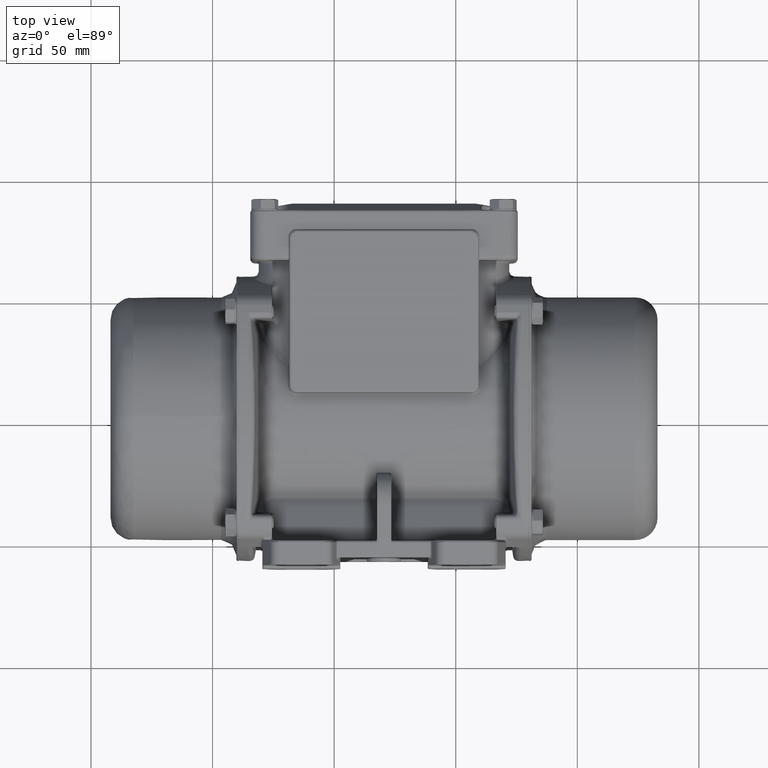
[diagram: clean part render]
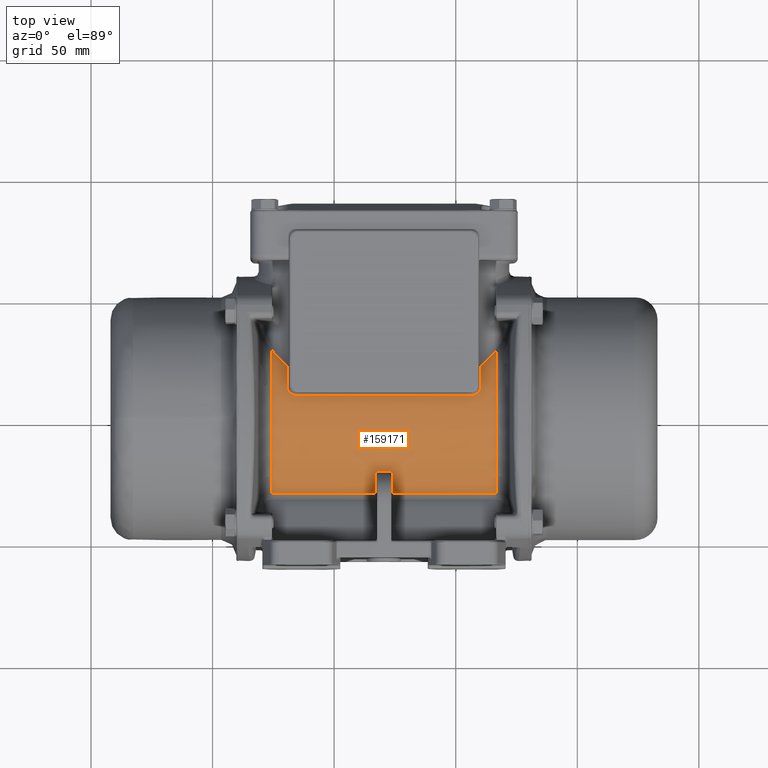
[diagram: same view with one face highlighted and labeled with its STEP entity id]
A machine part, top view. The second image highlights one B-rep face of the part: STEP entity #159171.
In plain terms, the highlighted face is a freeform B-spline surface patch.
Its self-contained STEP definition (entity closure, byte-faithful):
#1053 = CARTESIAN_POINT ( 'NONE',  ( 24.19548528429036300, -77.64548435813507900, 29.70231514955736100 ) ) ;
#4578 = DIRECTION ( 'NONE',  ( -1.000000000000000000, -6.123032000000000300E-017, -4.429664172539200000E-032 ) ) ;
#7208 = EDGE_CURVE ( 'NONE', #94421, #67795, #100573, .T. ) ;
#8401 = VERTEX_POINT ( 'NONE', #57209 ) ;
#9376 = CARTESIAN_POINT ( 'NONE',  ( 73.99998712874167900, -77.87841018997920600, 29.35156392523201400 ) ) ;
#9605 = LINE ( 'NONE', #116565, #62013 ) ;
#10091 = CARTESIAN_POINT ( 'NONE',  ( 73.99998712874189300, -71.72025815721328000, 34.39580548289009700 ) ) ;
#10104 = CARTESIAN_POINT ( 'NONE',  ( 110.3999871048999500, -35.77596681770489800, 39.50120770182883900 ) ) ;
#10758 = CARTESIAN_POINT ( 'NONE',  ( 109.3664133105152400, -38.51169075352239400, 40.28537700229859600 ) ) ;
#11380 = ORIENTED_EDGE ( 'NONE', *, *, #7208, .F. ) ;
#11607 = CARTESIAN_POINT ( 'NONE',  ( 116.8044889728554400, -50.91120879921764000, 41.70311492340899000 ) ) ;
#11846 = B_SPLINE_CURVE_WITH_KNOTS ( 'NONE', 3,
 ( #154663, #123794, #72423, #90702, #88568, #171512, #54805, #70974 ),
 .UNSPECIFIED., .F., .F.,
 ( 4, 1, 1, 1, 1, 4 ),
 ( 0.0000000000000000000, 0.2569106154188358600, 0.5140849566749800000, 0.7714651019669707100, 0.9002139309852004200, 1.000000000000000000 ),
 .UNSPECIFIED. ) ;
#12924 = CARTESIAN_POINT ( 'NONE',  ( 106.7596284051278700, -39.59312788280028900, 40.53307486326352200 ) ) ;
#13065 = DIRECTION ( 'NONE',  ( -1.000000000000000000, -6.123032000000000300E-017, -4.429664172539200000E-032 ) ) ;
#14524 = CARTESIAN_POINT ( 'NONE',  ( 24.19546118824100800, -27.12918541999437100, 35.89276262692222700 ) ) ;
#15254 = CARTESIAN_POINT ( 'NONE',  ( 116.8045130692425600, -42.64926428042931400, 41.36115196693917500 ) ) ;
#15883 = VERTEX_POINT ( 'NONE', #195701 ) ;
#15901 = CARTESIAN_POINT ( 'NONE',  ( 66.99998712874189300, -79.67463676406561000, 27.39329704920243500 ) ) ;
#16459 = CARTESIAN_POINT ( 'NONE',  ( 24.19548528454507200, -20.66016519486407800, 30.77652843473947500 ) ) ;
#17077 = VECTOR ( 'NONE', #4578, 1000.000000000000000 ) ;
#20204 = CARTESIAN_POINT ( 'NONE',  ( 73.21962226357902600, -70.74857223047220600, 35.03216904958227900 ) ) ;
#20908 = CARTESIAN_POINT ( 'NONE',  ( 73.99998712874189300, -71.72025815721328000, 34.39580548289009700 ) ) ;
#20933 = CARTESIAN_POINT ( 'NONE',  ( 110.6429676980205800, -27.17330762418530900, 35.60193546100279600 ) ) ;
#22091 = CARTESIAN_POINT ( 'NONE',  ( 67.99998712874189300, -70.73215535031695800, 35.04257346206930600 ) ) ;
#23912 = EDGE_CURVE ( 'NONE', #37552, #15883, #45906, .T. ) ;
#26233 = CARTESIAN_POINT ( 'NONE',  ( 73.99998712874189300, -75.94061480281433800, 31.17077231307148500 ) ) ;
#26324 = CARTESIAN_POINT ( 'NONE',  ( 116.8044889728554200, -73.85326649757230700, 33.19789293070482500 ) ) ;
#26767 = B_SPLINE_CURVE_WITH_KNOTS ( 'NONE', 3,
 ( #70688, #188131, #187385, #72134, #189531, #153649, #206475 ),
 .UNSPECIFIED., .F., .F.,
 ( 4, 1, 1, 1, 4 ),
 ( 0.0000000000000000000, 0.2623896652244829300, 0.5247793304489620800, 0.7871689956734419000, 1.000000000000000000 ),
 .UNSPECIFIED. ) ;
#28006 = VERTEX_POINT ( 'NONE', #10104 ) ;
#28240 = EDGE_CURVE ( 'NONE', #182849, #199397, #158748, .T. ) ;
#29959 = CARTESIAN_POINT ( 'NONE',  ( 55.06514514857474300, -59.07868740315491600, 40.41123290504966500 ) ) ;
#30706 = CARTESIAN_POINT ( 'NONE',  ( 85.93482910890892900, -50.91120879921761900, 41.70311492340899000 ) ) ;
#31281 = CARTESIAN_POINT ( 'NONE',  ( 110.3999871048999500, -35.77596681770489800, 39.50120770182883900 ) ) ;
#31428 = CARTESIAN_POINT ( 'NONE',  ( 55.06514514857485700, -22.69017992929889300, 32.61290087490898100 ) ) ;
#32081 = CARTESIAN_POINT ( 'NONE',  ( 30.59998715258360800, -35.77596681784306300, 39.50120770187334800 ) ) ;
#32663 = CARTESIAN_POINT ( 'NONE',  ( 24.19548528429024600, -55.57883904628625500, 41.26050045192679500 ) ) ;
#32906 = CARTESIAN_POINT ( 'NONE',  ( 85.93482910890904200, -34.61597184737408400, 39.39776282153696500 ) ) ;
#33093 = EDGE_CURVE ( 'NONE', #145004, #42387, #206257, .T. ) ;
#33576 = CARTESIAN_POINT ( 'NONE',  ( 66.99998712874189300, -75.94061480281433800, 31.17077231307148500 ) ) ;
#35723 = CARTESIAN_POINT ( 'NONE',  ( 112.3250417842215500, -25.58497491652052600, 34.61187046806690400 ) ) ;
#37552 = VERTEX_POINT ( 'NONE', #206917 ) ;
#37592 = CARTESIAN_POINT ( 'NONE',  ( 67.04055236098321300, -71.37456401872306300, 34.62750534968183300 ) ) ;
#38316 = CARTESIAN_POINT ( 'NONE',  ( 67.78035199390315300, -70.74857223047864400, 35.03216904957816500 ) ) ;
#38429 = CARTESIAN_POINT ( 'NONE',  ( 58.49998712874182900, -39.59317165760800300, 40.53292744709676000 ) ) ;
#38674 = CARTESIAN_POINT ( 'NONE',  ( 30.59998715258360800, -35.77596681784306300, 39.50120770187334800 ) ) ;
#39709 = CARTESIAN_POINT ( 'NONE',  ( 66.99845510307895300, -71.60263519817149800, 34.47505995399331600 ) ) ;
#39824 = CARTESIAN_POINT ( 'NONE',  ( 106.4999871287420900, -39.59319413631967400, 40.53282517687565400 ) ) ;
#41236 = B_SPLINE_CURVE_WITH_KNOTS ( 'NONE', 3,
 ( #104496, #38429, #89727, #39824 ),
 .UNSPECIFIED., .F., .F.,
 ( 4, 4 ),
 ( 0.0000000000000000000, 1.000000000000000000 ),
 .UNSPECIFIED. ) ;
#42387 = VERTEX_POINT ( 'NONE', #212418 ) ;
#43203 = CARTESIAN_POINT ( 'NONE',  ( 116.8044889728555400, -34.61597184737408400, 39.39776282153696500 ) ) ;
#45906 = B_SPLINE_CURVE_WITH_KNOTS ( 'NONE', 3,
 ( #200142, #217101, #132647, #148061, #184712, #49674, #32081 ),
 .UNSPECIFIED., .F., .F.,
 ( 4, 1, 1, 1, 4 ),
 ( 0.0000000000000000000, 0.2128296603731096900, 0.4752197735820701800, 0.7376098867910369000, 1.000000000000000000 ),
 .UNSPECIFIED. ) ;
#46824 = CARTESIAN_POINT ( 'NONE',  ( 24.19546118824100800, -20.65943761747074300, 30.77584209325770800 ) ) ;
#47417 = CARTESIAN_POINT ( 'NONE',  ( 107.2806604913124200, -39.54179571491675200, 40.52165048539065100 ) ) ;
#48285 = CARTESIAN_POINT ( 'NONE',  ( 55.06514514857497000, -50.91120879921761900, 41.70311492340899000 ) ) ;
#48466 = VERTEX_POINT ( 'NONE', #156516 ) ;
#49019 = CARTESIAN_POINT ( 'NONE',  ( 55.06514514857485700, -27.12918541999437100, 35.89276262692222700 ) ) ;
#49674 = CARTESIAN_POINT ( 'NONE',  ( 30.59998715258371900, -35.00921183937594300, 39.25426377079680400 ) ) ;
#49745 = CARTESIAN_POINT ( 'NONE',  ( 24.19546118824100800, -22.69017992929889300, 32.61290087490898100 ) ) ;
#50213 = CARTESIAN_POINT ( 'NONE',  ( 24.19548528429069000, -72.99411434475756300, 33.93868637855192800 ) ) ;
#50769 = B_SPLINE_SURFACE_WITH_KNOTS ( 'NONE', 3, 3, ( 
 ( #99675, #184060, #131250, #46824 ),
 ( #130532, #164290, #31428, #49745 ),
 ( #214974, #183355, #49019, #14524 ),
 ( #148886, #32906, #197304, #198770 ),
 ( #15254, #214248, #80600, #98212 ),
 ( #65906, #30706, #48285, #82043 ),
 ( #217171, #198040, #29959, #82772 ),
 ( #181151, #199499, #97457, #98959 ),
 ( #167185, #182626, #147399, #65180 ),
 ( #96747, #200220, #64451, #114375 ),
 ( #216443, #113627, #116561, #115814 ) ),
 .UNSPECIFIED., .F., .F., .F.,
 ( 4, 1, 1, 1, 1, 1, 1, 1, 4 ),
 ( 4, 4 ),
 ( 0.0000000000000000000, 8.215125911306513400, 16.43025182261303400, 24.64537773391948900, 32.86050364522601800, 41.07562955653249800, 49.29075546783904100, 57.50588137914550700, 65.72100729045202200 ),
 ( 0.0000000000000000000, 92.60905188100173300 ),
 .UNSPECIFIED. ) ;
#51110 = ORIENTED_EDGE ( 'NONE', *, *, #117695, .F. ) ;
#51821 = CARTESIAN_POINT ( 'NONE',  ( 116.8044889729389400, -20.66016519481739200, 30.77652843469372700 ) ) ;
#52506 = CARTESIAN_POINT ( 'NONE',  ( 73.95942189651083300, -71.37456401872232400, 34.62750534968267900 ) ) ;
#52530 = CARTESIAN_POINT ( 'NONE',  ( 115.3450081061708200, -22.38526560804645300, 32.27985840678568500 ) ) ;
#53978 = CARTESIAN_POINT ( 'NONE',  ( 73.60040827855363000, -70.92176426556501700, 34.92164727352401600 ) ) ;
#54805 = CARTESIAN_POINT ( 'NONE',  ( 30.35697377825108800, -27.17336986461196000, 35.60195376384137900 ) ) ;
#55151 = VERTEX_POINT ( 'NONE', #71974 ) ;
#57209 = CARTESIAN_POINT ( 'NONE',  ( 73.99998712874189300, -71.72025815721328000, 34.39580548289009700 ) ) ;
#58521 = CARTESIAN_POINT ( 'NONE',  ( 73.99998712874189300, -73.89042693418829800, 32.86231002303898000 ) ) ;
#59824 = CARTESIAN_POINT ( 'NONE',  ( 31.63356094696802900, -38.51169075351940300, 40.28537700229775700 ) ) ;
#60689 = CARTESIAN_POINT ( 'NONE',  ( 73.99998712874189300, -79.09020778459463900, 28.05839978401294500 ) ) ;
#62013 = VECTOR ( 'NONE', #13065, 1000.000000000000000 ) ;
#62843 = CARTESIAN_POINT ( 'NONE',  ( 106.4999871287420900, -39.59319413631967400, 40.53282517687565400 ) ) ;
#64451 = CARTESIAN_POINT ( 'NONE',  ( 55.06514514857485700, -77.89652721224921100, 29.42097129651573100 ) ) ;
#64592 = VERTEX_POINT ( 'NONE', #190998 ) ;
#64677 = ORIENTED_EDGE ( 'NONE', *, *, #28240, .F. ) ;
#65180 = CARTESIAN_POINT ( 'NONE',  ( 24.19546118824122900, -73.86510900130532800, 33.19057738564677600 ) ) ;
#65668 = CARTESIAN_POINT ( 'NONE',  ( 24.19548528429058000, -36.63449012295137700, 40.14658275216523700 ) ) ;
#65906 = CARTESIAN_POINT ( 'NONE',  ( 116.8045130692427700, -50.91120879921761900, 41.70311492340899000 ) ) ;
#66046 = EDGE_CURVE ( 'NONE', #137730, #134114, #41236, .T. ) ;
#66521 = B_SPLINE_CURVE_WITH_KNOTS ( 'NONE', 3,
 ( #20908, #186122, #52506, #169945, #53978, #170660, #20204, #155250, #136217 ),
 .UNSPECIFIED., .F., .F.,
 ( 4, 1, 1, 1, 1, 1, 4 ),
 ( 0.0000000000000000000, 0.2754641723109533800, 0.5376631528788543600, 0.6616143933934421900, 0.7794369540210756000, 0.8914748273275403500, 1.000000000000000000 ),
 .UNSPECIFIED. ) ;
#67795 = VERTEX_POINT ( 'NONE', #183955 ) ;
#70688 = CARTESIAN_POINT ( 'NONE',  ( 110.3999871048999500, -35.77596681770489800, 39.50120770182883900 ) ) ;
#70974 = CARTESIAN_POINT ( 'NONE',  ( 30.60004465089016900, -27.39212459950846000, 35.73108979909662300 ) ) ;
#71709 = CARTESIAN_POINT ( 'NONE',  ( 30.64723060709407700, -36.50298843934479700, 39.73051343112675200 ) ) ;
#71974 = CARTESIAN_POINT ( 'NONE',  ( 72.99998712874189300, -70.73215535032417700, 35.04257346206471600 ) ) ;
#72134 = CARTESIAN_POINT ( 'NONE',  ( 110.3999871049000600, -31.26172354703865600, 37.77617629520715100 ) ) ;
#72423 = CARTESIAN_POINT ( 'NONE',  ( 25.65467561364634700, -22.38540828089655900, 32.27990020896774600 ) ) ;
#80600 = CARTESIAN_POINT ( 'NONE',  ( 55.06514514857474300, -42.64926428042931400, 41.36115196693917500 ) ) ;
#80941 = ORIENTED_EDGE ( 'NONE', *, *, #23912, .F. ) ;
#81975 = CARTESIAN_POINT ( 'NONE',  ( 66.99998712874189300, -79.09020778459463900, 28.05839978401294500 ) ) ;
#82043 = CARTESIAN_POINT ( 'NONE',  ( 24.19546118824111900, -50.91120879921761900, 41.70311492340899000 ) ) ;
#82772 = CARTESIAN_POINT ( 'NONE',  ( 24.19546118824089800, -59.07868740315491600, 40.41123290504966500 ) ) ;
#82920 = CARTESIAN_POINT ( 'NONE',  ( 116.8044889729389400, -20.66016519481739200, 30.77652843469372700 ) ) ;
#83193 = ORIENTED_EDGE ( 'NONE', *, *, #33093, .F. ) ;
#84982 = EDGE_CURVE ( 'NONE', #209450, #94421, #9605, .T. ) ;
#87450 = CARTESIAN_POINT ( 'NONE',  ( 67.39956597892691500, -70.92176426556731900, 34.92164727352260200 ) ) ;
#88568 = CARTESIAN_POINT ( 'NONE',  ( 28.67459212896563500, -25.58531298408880500, 34.61192521488062100 ) ) ;
#89727 = CARTESIAN_POINT ( 'NONE',  ( 82.49998712874185000, -39.59317165760800300, 40.53292744709676000 ) ) ;
#90236 = ORIENTED_EDGE ( 'NONE', *, *, #104413, .F. ) ;
#90702 = CARTESIAN_POINT ( 'NONE',  ( 27.25006170801506000, -24.13181757547558000, 33.61523686521519500 ) ) ;
#92400 = CARTESIAN_POINT ( 'NONE',  ( 116.8044889728552100, -59.07868740315491600, 40.41123290504966500 ) ) ;
#93564 = ORIENTED_EDGE ( 'NONE', *, *, #84982, .F. ) ;
#94421 = VERTEX_POINT ( 'NONE', #99537 ) ;
#95285 = CARTESIAN_POINT ( 'NONE',  ( 116.8044889728553200, -77.87615796523317600, 29.44000821328691600 ) ) ;
#96747 = CARTESIAN_POINT ( 'NONE',  ( 116.8045130692426600, -77.89652721224921100, 29.42097129651573100 ) ) ;
#97457 = CARTESIAN_POINT ( 'NONE',  ( 55.06514514857474300, -66.83216650011620200, 37.53508163221079700 ) ) ;
#98212 = CARTESIAN_POINT ( 'NONE',  ( 24.19546118824078500, -42.64926428042931400, 41.36115196693917500 ) ) ;
#98344 = ORIENTED_EDGE ( 'NONE', *, *, #165742, .F. ) ;
#98959 = CARTESIAN_POINT ( 'NONE',  ( 24.19546118824089800, -66.83216650011620200, 37.53508163221079700 ) ) ;
#99537 = CARTESIAN_POINT ( 'NONE',  ( 24.19548528425097100, -79.67463445923422700, 27.39329502374846500 ) ) ;
#99675 = CARTESIAN_POINT ( 'NONE',  ( 116.8045130692426600, -20.65943761747074300, 30.77584209325770800 ) ) ;
#100573 = B_SPLINE_CURVE_WITH_KNOTS ( 'NONE', 3,
 ( #183829, #1053, #50213, #185286, #32663, #166222, #65668, #133229, #216941, #16459 ),
 .UNSPECIFIED., .F., .F.,
 ( 4, 1, 1, 1, 1, 1, 1, 4 ),
 ( 0.0000000000000000000, 0.1404571273089152100, 0.2846947040304001500, 0.4289322807518852200, 0.5731698574733705700, 0.7174074341948547500, 0.8616450109163399400, 1.000000000000000000 ),
 .UNSPECIFIED. ) ;
#100629 = ORIENTED_EDGE ( 'NONE', *, *, #122905, .F. ) ;
#101160 = B_SPLINE_CURVE_WITH_KNOTS ( 'NONE', 3,
 ( #62843, #12924, #47417, #111319, #10758, #128216, #150900, #199356, #31281 ),
 .UNSPECIFIED., .F., .F.,
 ( 4, 1, 1, 1, 1, 1, 4 ),
 ( 0.0000000000000000000, 0.1249293391909046700, 0.2498205012155801700, 0.4984159666346574300, 0.7477489585646321900, 0.8735991960202381700, 1.000000000000000000 ),
 .UNSPECIFIED. ) ;
#102056 = EDGE_CURVE ( 'NONE', #64592, #209450, #153328, .T. ) ;
#102840 = ORIENTED_EDGE ( 'NONE', *, *, #66046, .F. ) ;
#104377 = CARTESIAN_POINT ( 'NONE',  ( 67.20067688982773300, -71.10115109405987300, 34.80605442134904600 ) ) ;
#104413 = EDGE_CURVE ( 'NONE', #67795, #37552, #11846, .T. ) ;
#104496 = CARTESIAN_POINT ( 'NONE',  ( 34.49998712874169400, -39.59319413631923400, 40.53282517687557600 ) ) ;
#109031 = CARTESIAN_POINT ( 'NONE',  ( 33.71931376617076400, -39.54179571491056300, 40.52165048538923700 ) ) ;
#109999 = CARTESIAN_POINT ( 'NONE',  ( 116.8044889732331500, -79.67463447161526300, 27.39329503481033600 ) ) ;
#110723 = CARTESIAN_POINT ( 'NONE',  ( 116.8044889729389400, -20.66016519481739200, 30.77652843469372700 ) ) ;
#111041 = ORIENTED_EDGE ( 'NONE', *, *, #102056, .F. ) ;
#111319 = CARTESIAN_POINT ( 'NONE',  ( 108.2743233794822400, -39.24145529293057400, 40.45479537931513600 ) ) ;
#113627 = CARTESIAN_POINT ( 'NONE',  ( 85.93482910890881500, -79.70201451116636800, 27.36210876644243600 ) ) ;
#113941 = EDGE_CURVE ( 'NONE', #145004, #199397, #206777, .T. ) ;
#114375 = CARTESIAN_POINT ( 'NONE',  ( 24.19546118824100800, -77.89652721224921100, 29.42097129651573100 ) ) ;
#115814 = CARTESIAN_POINT ( 'NONE',  ( 24.19546118824100800, -79.70201451116636800, 27.36210876644243600 ) ) ;
#116561 = CARTESIAN_POINT ( 'NONE',  ( 55.06514514857485700, -79.70201451116636800, 27.36210876644243600 ) ) ;
#116565 = CARTESIAN_POINT ( 'NONE',  ( 70.49998712874183600, -79.67463670317603400, 27.39329699569740800 ) ) ;
#117229 = LINE ( 'NONE', #132584, #190701 ) ;
#117230 = CARTESIAN_POINT ( 'NONE',  ( 66.99998712874200600, -71.72025815720428500, 34.39580548289618600 ) ) ;
#117695 = EDGE_CURVE ( 'NONE', #55151, #48466, #117229, .T. ) ;
#118636 = CARTESIAN_POINT ( 'NONE',  ( 111.1928430138581500, -26.66950026277379800, 35.29779255944659200 ) ) ;
#120158 = EDGE_CURVE ( 'NONE', #42387, #8401, #179591, .T. ) ;
#120532 = EDGE_CURVE ( 'NONE', #48466, #64592, #191783, .T. ) ;
#122905 = EDGE_CURVE ( 'NONE', #8401, #55151, #66521, .T. ) ;
#123240 = CARTESIAN_POINT ( 'NONE',  ( 73.99998712874200600, -79.67463678436243400, 27.39329706703717800 ) ) ;
#123794 = CARTESIAN_POINT ( 'NONE',  ( 24.66793376894508000, -21.23265399784466500, 31.29238867070588300 ) ) ;
#125926 = CARTESIAN_POINT ( 'NONE',  ( 34.49998712874169400, -39.59319413631923400, 40.53282517687557600 ) ) ;
#128216 = CARTESIAN_POINT ( 'NONE',  ( 110.0706206548290000, -37.44401332313813700, 40.00525377542265900 ) ) ;
#130532 = CARTESIAN_POINT ( 'NONE',  ( 116.8045130692426600, -22.69017992929889300, 32.61290087490898100 ) ) ;
#131205 = CARTESIAN_POINT ( 'NONE',  ( 116.8044889732331500, -79.67463447161526300, 27.39329503481033600 ) ) ;
#131250 = CARTESIAN_POINT ( 'NONE',  ( 55.06514514857485700, -20.65943761747074300, 30.77584209325770800 ) ) ;
#132584 = CARTESIAN_POINT ( 'NONE',  ( 70.49998712874183600, -70.73215653489728500, 35.04257532929737100 ) ) ;
#132647 = CARTESIAN_POINT ( 'NONE',  ( 30.59998715258371100, -29.22874529267972600, 36.77597043098712200 ) ) ;
#133229 = CARTESIAN_POINT ( 'NONE',  ( 24.19548528429014300, -27.96268785929323300, 36.46215898435459500 ) ) ;
#134114 = VERTEX_POINT ( 'NONE', #167151 ) ;
#136217 = CARTESIAN_POINT ( 'NONE',  ( 72.99998712874189300, -70.73215535032417700, 35.04257346206471600 ) ) ;
#136247 = CARTESIAN_POINT ( 'NONE',  ( 110.3999220636201500, -27.39210308424722100, 35.73108146297032300 ) ) ;
#137730 = VERTEX_POINT ( 'NONE', #191176 ) ;
#138044 = ORIENTED_EDGE ( 'NONE', *, *, #155856, .F. ) ;
#140266 = CARTESIAN_POINT ( 'NONE',  ( 67.92819968315200200, -70.73250303042533500, 35.04237668849082600 ) ) ;
#142450 = ORIENTED_EDGE ( 'NONE', *, *, #159259, .F. ) ;
#143543 = CARTESIAN_POINT ( 'NONE',  ( 32.72565087800083500, -39.24145529293413400, 40.45479537931595400 ) ) ;
#143791 = CARTESIAN_POINT ( 'NONE',  ( 116.8044889728552100, -42.64926428042931400, 41.36115196693917500 ) ) ;
#145004 = VERTEX_POINT ( 'NONE', #131205 ) ;
#147399 = CARTESIAN_POINT ( 'NONE',  ( 55.06514514857507700, -73.86510900130532800, 33.19057738564677600 ) ) ;
#148061 = CARTESIAN_POINT ( 'NONE',  ( 30.59998715258360800, -31.26172354703865600, 37.77617629520718600 ) ) ;
#148822 = CARTESIAN_POINT ( 'NONE',  ( 66.99998712874189300, -73.89042693418829800, 32.86231002303898000 ) ) ;
#148886 = CARTESIAN_POINT ( 'NONE',  ( 116.8045130692428900, -34.61597184737408400, 39.39776282153696500 ) ) ;
#150900 = CARTESIAN_POINT ( 'NONE',  ( 110.3527436503924100, -36.50298843934449900, 39.73051343112697300 ) ) ;
#153328 = B_SPLINE_CURVE_WITH_KNOTS ( 'NONE', 3,
 ( #117230, #166388, #148822, #33576, #217112, #81975, #15901 ),
 .UNSPECIFIED., .F., .F.,
 ( 4, 1, 1, 1, 4 ),
 ( 0.0000000000000000000, 0.2500000000000003300, 0.5000000000000004400, 0.7499999999999994400, 1.000000000000000000 ),
 .UNSPECIFIED. ) ;
#153649 = CARTESIAN_POINT ( 'NONE',  ( 110.3999871048999200, -27.95479249335279800, 36.06342646004120000 ) ) ;
#154663 = CARTESIAN_POINT ( 'NONE',  ( 24.19548528454507200, -20.66016519486407800, 30.77652843473947500 ) ) ;
#155250 = CARTESIAN_POINT ( 'NONE',  ( 73.07177457433111600, -70.73250303043876400, 35.04237668848228500 ) ) ;
#155370 = CARTESIAN_POINT ( 'NONE',  ( 30.59967643164996800, -36.01806308303967800, 39.57910122939039600 ) ) ;
#155719 = CARTESIAN_POINT ( 'NONE',  ( 66.99998712874200600, -71.72025815720428500, 34.39580548289618600 ) ) ;
#155856 = EDGE_CURVE ( 'NONE', #134114, #28006, #101160, .T. ) ;
#156084 = CARTESIAN_POINT ( 'NONE',  ( 30.92935360265348500, -37.44401332313901100, 40.00525377542304300 ) ) ;
#156516 = CARTESIAN_POINT ( 'NONE',  ( 67.99998712874189300, -70.73215535031695800, 35.04257346206930600 ) ) ;
#157214 = CARTESIAN_POINT ( 'NONE',  ( 95.40173805077489500, -79.67463680465891700, 27.39329708487212000 ) ) ;
#158748 = B_SPLINE_CURVE_WITH_KNOTS ( 'NONE', 3,
 ( #136247, #20933, #118636, #35723, #187591, #52530, #169236, #51821 ),
 .UNSPECIFIED., .F., .F.,
 ( 4, 1, 1, 1, 1, 4 ),
 ( 0.0000000000000000000, 0.09979039948404976000, 0.2285461341445461100, 0.4859076915335129900, 0.7430803143163226000, 1.000000000000000000 ),
 .UNSPECIFIED. ) ;
#159171 = ADVANCED_FACE ( 'NONE', ( #168089 ), #50769, .F. ) ;
#159259 = EDGE_CURVE ( 'NONE', #15883, #137730, #187141, .T. ) ;
#164290 = CARTESIAN_POINT ( 'NONE',  ( 85.93482910890881500, -22.69017992929889300, 32.61290087490898100 ) ) ;
#165742 = EDGE_CURVE ( 'NONE', #28006, #182849, #26767, .T. ) ;
#166222 = CARTESIAN_POINT ( 'NONE',  ( 24.19548528429024600, -46.04272868853831800, 41.79089655146128000 ) ) ;
#166388 = CARTESIAN_POINT ( 'NONE',  ( 66.99998712874189300, -72.45407488136135000, 33.90039464713753900 ) ) ;
#167151 = CARTESIAN_POINT ( 'NONE',  ( 106.4999871287420900, -39.59319413631967400, 40.53282517687565400 ) ) ;
#167185 = CARTESIAN_POINT ( 'NONE',  ( 116.8045130692427700, -73.86510900130532800, 33.19057738564677600 ) ) ;
#168089 = FACE_OUTER_BOUND ( 'NONE', #197555, .T. ) ;
#169236 = CARTESIAN_POINT ( 'NONE',  ( 116.3319250937529600, -21.23261218999940800, 31.29237910904530300 ) ) ;
#169945 = CARTESIAN_POINT ( 'NONE',  ( 73.79929736765133400, -71.10115109405579400, 34.80605442135177400 ) ) ;
#170660 = CARTESIAN_POINT ( 'NONE',  ( 73.42329408455250900, -70.81695945466253800, 34.98867280288406800 ) ) ;
#171512 = CARTESIAN_POINT ( 'NONE',  ( 29.80706138644732300, -26.66963936219680400, 35.29783402155009500 ) ) ;
#173999 = CARTESIAN_POINT ( 'NONE',  ( 67.57668017292876100, -70.81695945466141500, 34.98867280288465100 ) ) ;
#177522 = CARTESIAN_POINT ( 'NONE',  ( 116.8044889728552100, -27.12948920046283900, 35.89290484422886600 ) ) ;
#179591 = B_SPLINE_CURVE_WITH_KNOTS ( 'NONE', 3,
 ( #123240, #60689, #9376, #26233, #58521, #194309, #10091 ),
 .UNSPECIFIED., .F., .F.,
 ( 4, 1, 1, 1, 4 ),
 ( 0.0000000000000000000, 0.2500000000000005600, 0.4999999999999995000, 0.7499999999999997800, 1.000000000000000000 ),
 .UNSPECIFIED. ) ;
#181151 = CARTESIAN_POINT ( 'NONE',  ( 116.8045130692425600, -66.83216650011620200, 37.53508163221079700 ) ) ;
#182626 = CARTESIAN_POINT ( 'NONE',  ( 85.93482910890892900, -73.86510900130532800, 33.19057738564677600 ) ) ;
#182849 = VERTEX_POINT ( 'NONE', #192438 ) ;
#183355 = CARTESIAN_POINT ( 'NONE',  ( 85.93482910890870100, -27.12918541999437100, 35.89276262692222700 ) ) ;
#183829 = CARTESIAN_POINT ( 'NONE',  ( 24.19548528425097100, -79.67463445923422700, 27.39329502374846500 ) ) ;
#183955 = CARTESIAN_POINT ( 'NONE',  ( 24.19548528454507200, -20.66016519486407800, 30.77652843473947500 ) ) ;
#184060 = CARTESIAN_POINT ( 'NONE',  ( 85.93482910890881500, -20.65943761747074300, 30.77584209325770800 ) ) ;
#184712 = CARTESIAN_POINT ( 'NONE',  ( 30.59998715258394200, -33.48974464493459600, 38.71550779490010500 ) ) ;
#185286 = CARTESIAN_POINT ( 'NONE',  ( 24.19548528429058000, -64.74731846108349500, 38.58132438240451000 ) ) ;
#186122 = CARTESIAN_POINT ( 'NONE',  ( 74.00151915437913900, -71.60263519816928100, 34.47505995399395600 ) ) ;
#187141 = B_SPLINE_CURVE_WITH_KNOTS ( 'NONE', 3,
 ( #38674, #155370, #71709, #156084, #59824, #143543, #109031, #193451, #125926 ),
 .UNSPECIFIED., .F., .F.,
 ( 4, 1, 1, 1, 1, 1, 4 ),
 ( 0.0000000000000000000, 0.1264008039798609200, 0.2522510414355870200, 0.5015840333652181700, 0.7501794987842529400, 0.8750706608089966500, 1.000000000000000000 ),
 .UNSPECIFIED. ) ;
#187385 = CARTESIAN_POINT ( 'NONE',  ( 110.3999871048997400, -33.48974464493436900, 38.71550779490027600 ) ) ;
#187591 = CARTESIAN_POINT ( 'NONE',  ( 113.7500224553275200, -24.13191879545119500, 33.61523241427794800 ) ) ;
#188131 = CARTESIAN_POINT ( 'NONE',  ( 110.3999871048999500, -35.00921183937605000, 39.25426377079638500 ) ) ;
#189531 = CARTESIAN_POINT ( 'NONE',  ( 110.3999871048998600, -29.22874058700130500, 36.77596811583817500 ) ) ;
#190701 = VECTOR ( 'NONE', #217042, 1000.000000000000000 ) ;
#190998 = CARTESIAN_POINT ( 'NONE',  ( 66.99998712874200600, -71.72025815720428500, 34.39580548289618600 ) ) ;
#191176 = CARTESIAN_POINT ( 'NONE',  ( 34.49998712874169400, -39.59319413631923400, 40.53282517687557600 ) ) ;
#191774 = CARTESIAN_POINT ( 'NONE',  ( 66.99998712874189300, -79.67463676406561000, 27.39329704920243500 ) ) ;
#191783 = B_SPLINE_CURVE_WITH_KNOTS ( 'NONE', 3,
 ( #22091, #140266, #38316, #173999, #87450, #104377, #37592, #39709, #155719 ),
 .UNSPECIFIED., .F., .F.,
 ( 4, 1, 1, 1, 1, 1, 4 ),
 ( 0.0000000000000000000, 0.1085251726731337900, 0.2205630459802812900, 0.3383856066086423600, 0.4623368471241768900, 0.7245358276934355000, 1.000000000000000000 ),
 .UNSPECIFIED. ) ;
#192438 = CARTESIAN_POINT ( 'NONE',  ( 110.3999220636201500, -27.39210308424722100, 35.73108146297032300 ) ) ;
#193451 = CARTESIAN_POINT ( 'NONE',  ( 34.24034585235568800, -39.59312788281352600, 40.53307486326655600 ) ) ;
#194309 = CARTESIAN_POINT ( 'NONE',  ( 73.99998712874189300, -72.45407488136135000, 33.90039464713753900 ) ) ;
#195701 = CARTESIAN_POINT ( 'NONE',  ( 30.59998715258360800, -35.77596681784306300, 39.50120770187334800 ) ) ;
#197304 = CARTESIAN_POINT ( 'NONE',  ( 55.06514514857519100, -34.61597184737408400, 39.39776282153696500 ) ) ;
#197555 = EDGE_LOOP ( 'NONE', ( #51110, #100629, #198216, #83193, #217313, #64677, #98344, #138044, #102840, #142450, #80941, #90236, #11380, #93564, #111041, #215017 ) ) ;
#198040 = CARTESIAN_POINT ( 'NONE',  ( 85.93482910890870100, -59.07868740315491600, 40.41123290504966500 ) ) ;
#198216 = ORIENTED_EDGE ( 'NONE', *, *, #120158, .F. ) ;
#198770 = CARTESIAN_POINT ( 'NONE',  ( 24.19546118824133900, -34.61597184737408400, 39.39776282153696500 ) ) ;
#199356 = CARTESIAN_POINT ( 'NONE',  ( 110.4002978258254200, -36.01806308303984100, 39.57910122938966400 ) ) ;
#199397 = VERTEX_POINT ( 'NONE', #82920 ) ;
#199499 = CARTESIAN_POINT ( 'NONE',  ( 85.93482910890870100, -66.83216650011620200, 37.53508163221079700 ) ) ;
#200142 = CARTESIAN_POINT ( 'NONE',  ( 30.60004465089016900, -27.39212459950846000, 35.73108979909662300 ) ) ;
#200220 = CARTESIAN_POINT ( 'NONE',  ( 85.93482910890881500, -77.89652721224921100, 29.42097129651573100 ) ) ;
#206257 = LINE ( 'NONE', #157214, #17077 ) ;
#206475 = CARTESIAN_POINT ( 'NONE',  ( 110.3999220636201500, -27.39210308424722100, 35.73108146297032300 ) ) ;
#206777 = B_SPLINE_CURVE_WITH_KNOTS ( 'NONE', 3,
 ( #109999, #95285, #26324, #212787, #92400, #11607, #143791, #43203, #177522, #211359, #110723 ),
 .UNSPECIFIED., .F., .F.,
 ( 4, 1, 1, 1, 1, 1, 1, 1, 4 ),
 ( 0.0000000000000000000, 0.1244490285083146900, 0.2495299138180861700, 0.3746107991278588300, 0.4996916844376305100, 0.6247725697474029200, 0.7498534550571743800, 0.8749343403669466200, 1.000000000000000000 ),
 .UNSPECIFIED. ) ;
#206917 = CARTESIAN_POINT ( 'NONE',  ( 30.60004465089016900, -27.39212459950846000, 35.73108979909662300 ) ) ;
#209450 = VERTEX_POINT ( 'NONE', #191774 ) ;
#211359 = CARTESIAN_POINT ( 'NONE',  ( 116.8044889728553200, -22.69072027659686300, 32.61330011798735000 ) ) ;
#212418 = CARTESIAN_POINT ( 'NONE',  ( 73.99998712874200600, -79.67463678436243400, 27.39329706703717800 ) ) ;
#212787 = CARTESIAN_POINT ( 'NONE',  ( 116.8044889728552100, -66.83216650011620200, 37.53508163221079700 ) ) ;
#214248 = CARTESIAN_POINT ( 'NONE',  ( 85.93482910890858800, -42.64926428042931400, 41.36115196693917500 ) ) ;
#214974 = CARTESIAN_POINT ( 'NONE',  ( 116.8045130692425600, -27.12918541999437100, 35.89276262692222700 ) ) ;
#215017 = ORIENTED_EDGE ( 'NONE', *, *, #120532, .F. ) ;
#216443 = CARTESIAN_POINT ( 'NONE',  ( 116.8045130692426600, -79.70201451116636800, 27.36210876644243600 ) ) ;
#216941 = CARTESIAN_POINT ( 'NONE',  ( 24.19548528429042000, -22.91101198322270000, 32.81298152471676100 ) ) ;
#217042 = DIRECTION ( 'NONE',  ( -1.000000000000000000, -6.123032000000000300E-017, -4.429664172539200000E-032 ) ) ;
#217101 = CARTESIAN_POINT ( 'NONE',  ( 30.59998715258371900, -27.95480164716374800, 36.06343157992781600 ) ) ;
#217112 = CARTESIAN_POINT ( 'NONE',  ( 66.99998712874166500, -77.87841018997920600, 29.35156392523201400 ) ) ;
#217171 = CARTESIAN_POINT ( 'NONE',  ( 116.8045130692425600, -59.07868740315491600, 40.41123290504966500 ) ) ;
#217313 = ORIENTED_EDGE ( 'NONE', *, *, #113941, .T. ) ;